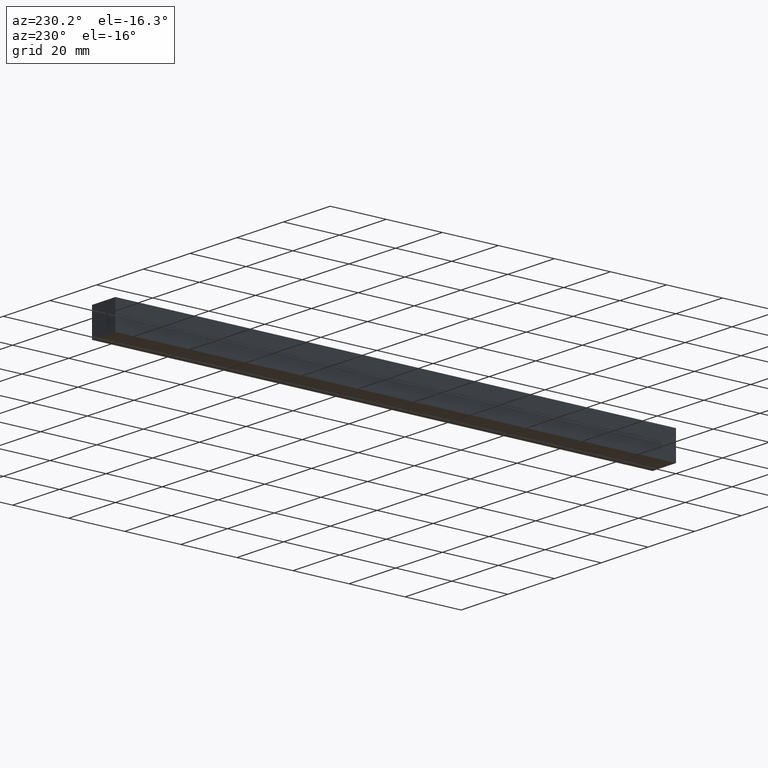
[diagram: clean part render]
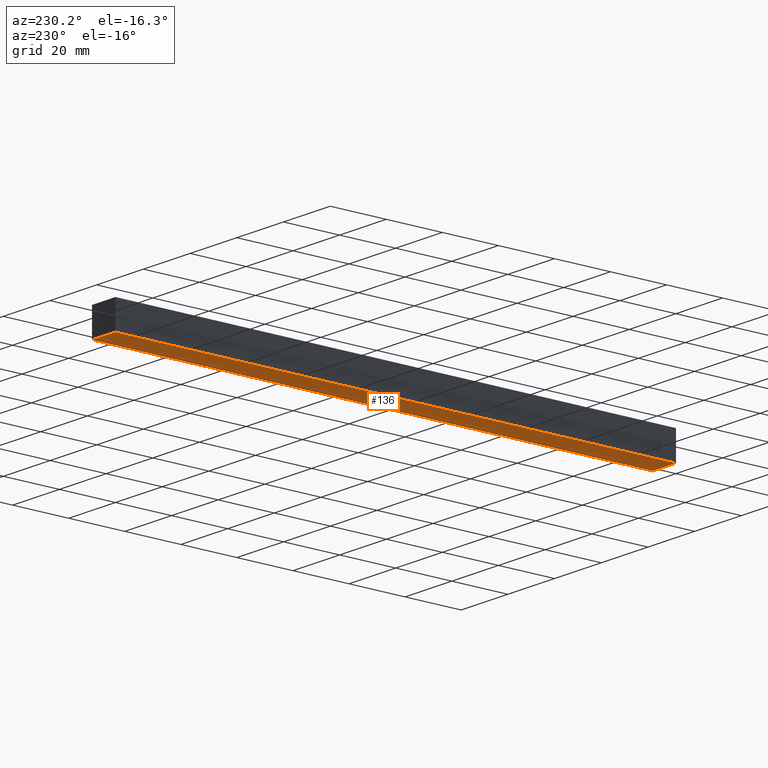
[diagram: same view with one face highlighted and labeled with its STEP entity id]
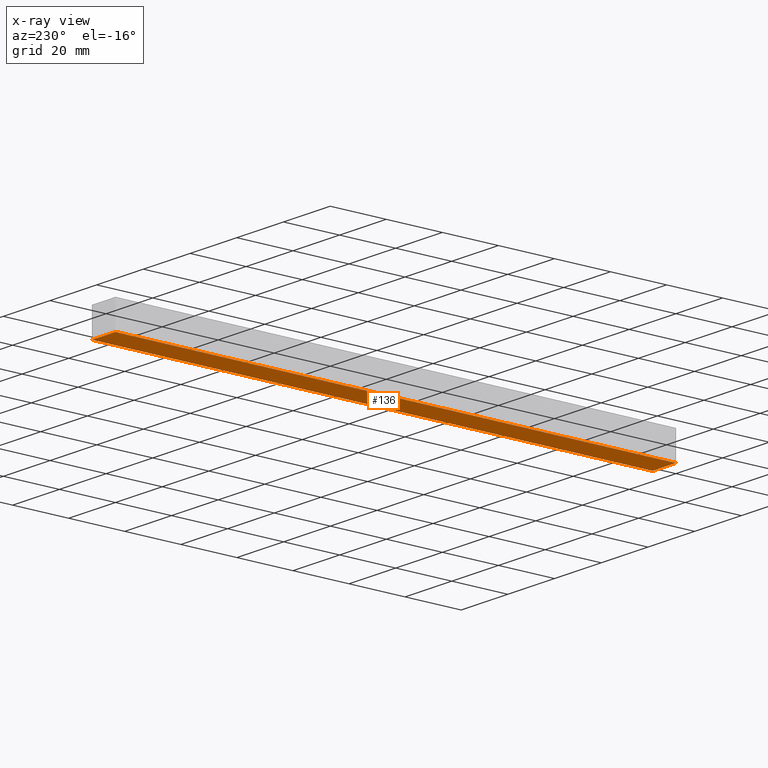
[diagram: x-ray of the same camera — body ghosted, the highlighted face saturated]
A machine part, auxiliary view. The second image highlights one B-rep face of the part: STEP entity #136.
The next image is the same camera in x-ray: the body ghosted, the highlighted face saturated — about 0% of this face is hidden behind the body in this view.
In plain terms, the highlighted planar face has unit normal (0, 0, -1).
Its self-contained STEP definition (entity closure, byte-faithful):
#3 = CARTESIAN_POINT ( 'NONE',  ( 0.0000000000000000000, 1000.000000000000000, 0.0000000000000000000 ) ) ;
#5 = VERTEX_POINT ( 'NONE', #162 ) ;
#6 = DIRECTION ( 'NONE',  ( 0.0000000000000000000, -1.000000000000000000, 0.0000000000000000000 ) ) ;
#13 = ORIENTED_EDGE ( 'NONE', *, *, #17, .T. ) ;
#15 = LINE ( 'NONE', #185, #227 ) ;
#17 = EDGE_CURVE ( 'NONE', #19, #5, #132, .T. ) ;
#19 = VERTEX_POINT ( 'NONE', #111 ) ;
#20 = AXIS2_PLACEMENT_3D ( 'NONE', #3, #117, #56 ) ;
#27 = VECTOR ( 'NONE', #6, 1000.000000000000000 ) ;
#38 = LINE ( 'NONE', #45, #27 ) ;
#45 = CARTESIAN_POINT ( 'NONE',  ( 10.00000000000000000, 1000.000000000000000, 0.0000000000000000000 ) ) ;
#47 = LINE ( 'NONE', #140, #115 ) ;
#48 = VERTEX_POINT ( 'NONE', #170 ) ;
#51 = EDGE_CURVE ( 'NONE', #5, #48, #38, .T. ) ;
#56 = DIRECTION ( 'NONE',  ( -1.000000000000000000, 0.0000000000000000000, 0.0000000000000000000 ) ) ;
#63 = CARTESIAN_POINT ( 'NONE',  ( 0.0000000000000000000, 200.0000000000000000, 0.0000000000000000000 ) ) ;
#96 = ORIENTED_EDGE ( 'NONE', *, *, #237, .F. ) ;
#103 = PLANE ( 'NONE',  #20 ) ;
#111 = CARTESIAN_POINT ( 'NONE',  ( 0.0000000000000000000, 200.0000000000000000, 0.0000000000000000000 ) ) ;
#115 = VECTOR ( 'NONE', #151, 1000.000000000000000 ) ;
#117 = DIRECTION ( 'NONE',  ( 0.0000000000000000000, 0.0000000000000000000, -1.000000000000000000 ) ) ;
#118 = VERTEX_POINT ( 'NONE', #193 ) ;
#131 = EDGE_CURVE ( 'NONE', #118, #48, #47, .T. ) ;
#132 = LINE ( 'NONE', #63, #238 ) ;
#136 = ADVANCED_FACE ( 'NONE', ( #223 ), #103, .T. ) ;
#138 = DIRECTION ( 'NONE',  ( 1.000000000000000000, -0.0000000000000000000, -0.0000000000000000000 ) ) ;
#140 = CARTESIAN_POINT ( 'NONE',  ( 0.0000000000000000000, 0.0000000000000000000, 0.0000000000000000000 ) ) ;
#144 = DIRECTION ( 'NONE',  ( 0.0000000000000000000, -1.000000000000000000, 0.0000000000000000000 ) ) ;
#151 = DIRECTION ( 'NONE',  ( 1.000000000000000000, -0.0000000000000000000, -0.0000000000000000000 ) ) ;
#162 = CARTESIAN_POINT ( 'NONE',  ( 10.00000000000000000, 200.0000000000000000, 0.0000000000000000000 ) ) ;
#170 = CARTESIAN_POINT ( 'NONE',  ( 10.00000000000000000, 0.0000000000000000000, 0.0000000000000000000 ) ) ;
#181 = ORIENTED_EDGE ( 'NONE', *, *, #131, .F. ) ;
#185 = CARTESIAN_POINT ( 'NONE',  ( 0.0000000000000000000, 1000.000000000000000, 0.0000000000000000000 ) ) ;
#193 = CARTESIAN_POINT ( 'NONE',  ( 0.0000000000000000000, 0.0000000000000000000, 0.0000000000000000000 ) ) ;
#223 = FACE_OUTER_BOUND ( 'NONE', #225, .T. ) ;
#225 = EDGE_LOOP ( 'NONE', ( #181, #96, #13, #234 ) ) ;
#227 = VECTOR ( 'NONE', #144, 1000.000000000000000 ) ;
#234 = ORIENTED_EDGE ( 'NONE', *, *, #51, .T. ) ;
#237 = EDGE_CURVE ( 'NONE', #19, #118, #15, .T. ) ;
#238 = VECTOR ( 'NONE', #138, 1000.000000000000000 ) ;